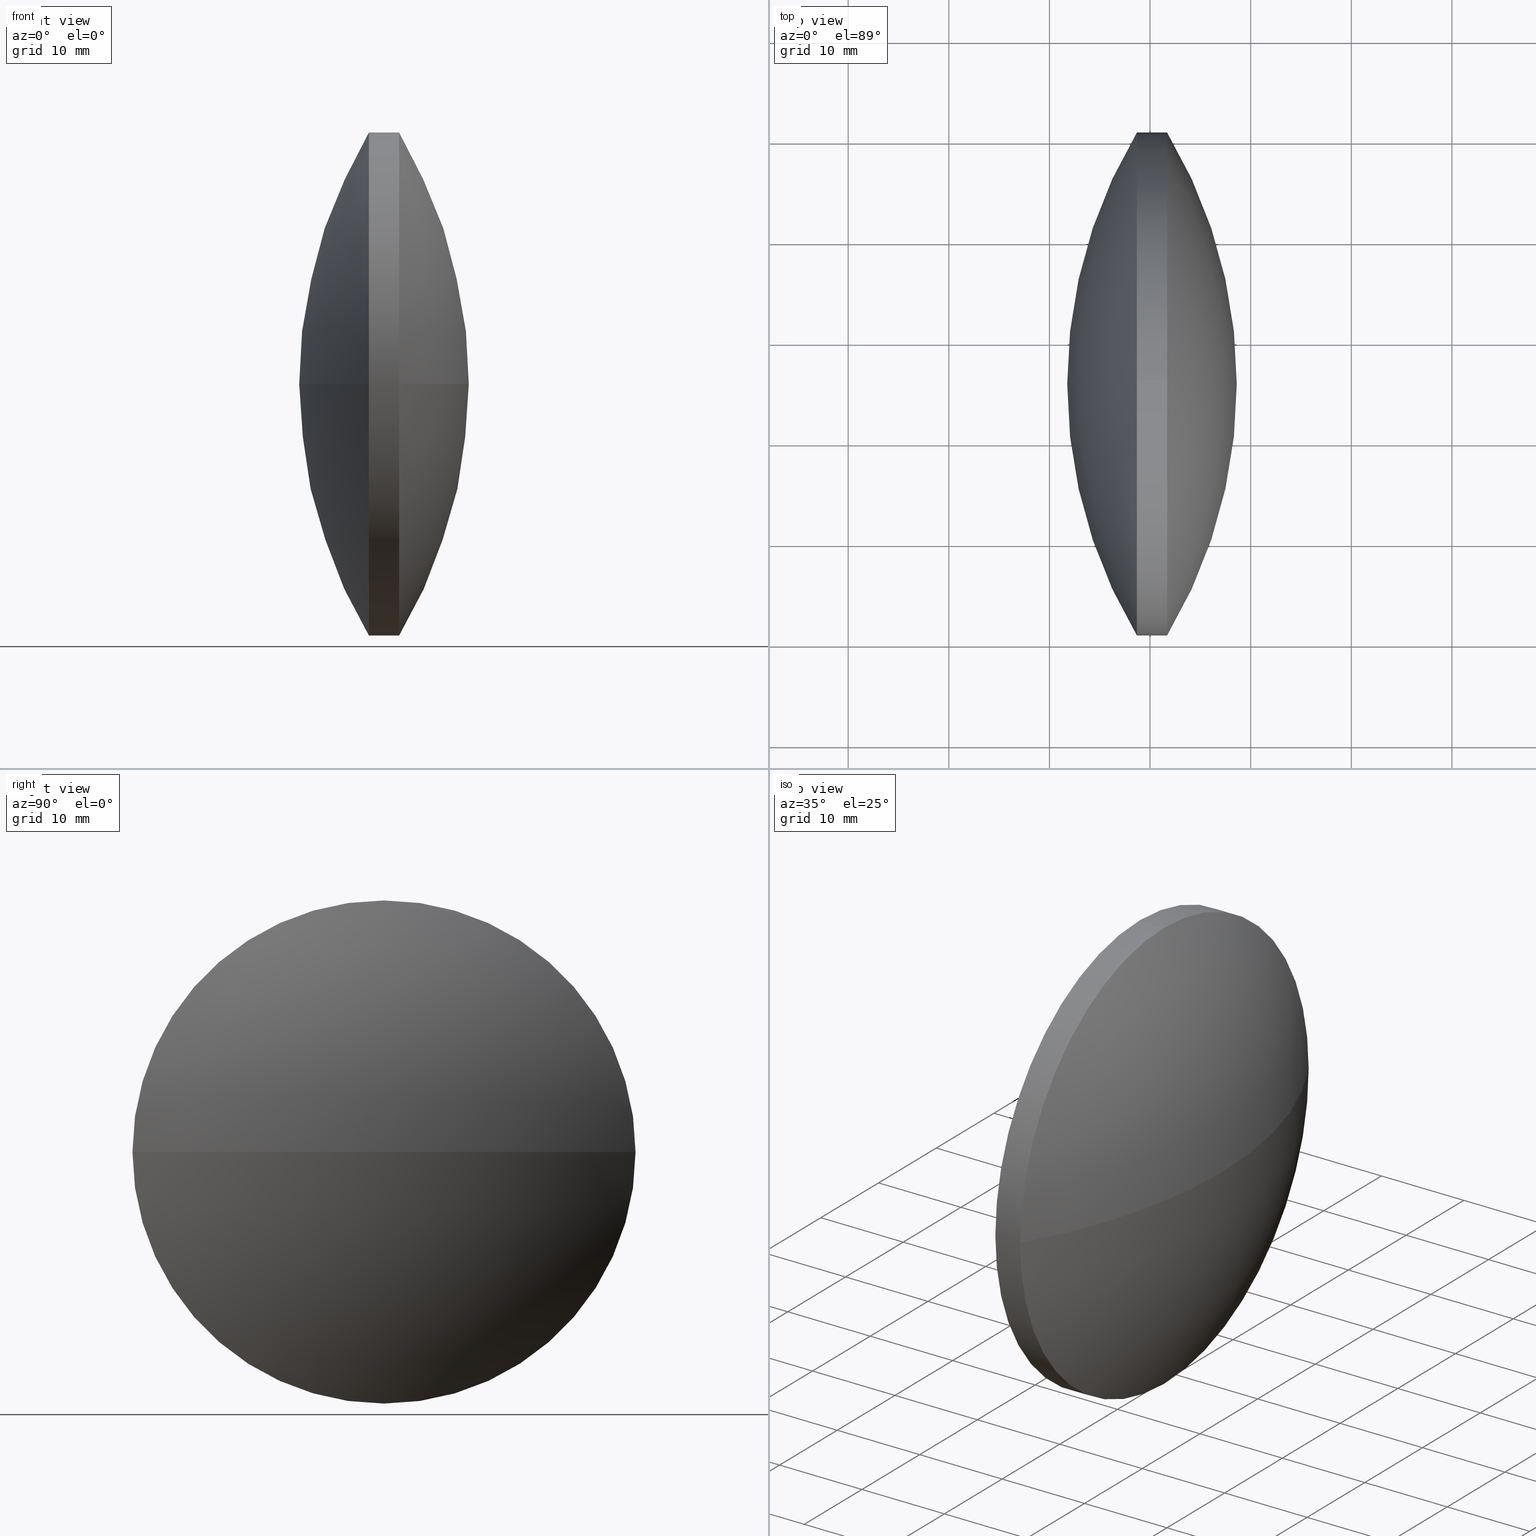
[diagram: canonical four-view strip — front | top / right | iso, engineering-drawing reading convention]
A machine part, canonical four-view strip (front | top / right | iso — engineering-drawing reading convention). The complete STEP part file that produces these views, byte-faithful:
ISO-10303-21;
HEADER;
FILE_DESCRIPTION (( 'STEP AP203' ),
    '1' );
FILE_NAME ('110019.STEP',
    '2019-06-25T06:16:20',
    ( '' ),
    ( '' ),
    'SwSTEP 2.0',
    'SolidWorks 2016',
    '' );
FILE_SCHEMA (( 'CONFIG_CONTROL_DESIGN' ));
ENDSEC;

DATA;
#1 = CC_DESIGN_APPROVAL ( #241, ( #112 ) ) ;
#2 = APPROVAL_PERSON_ORGANIZATION ( #161, #324, #259 ) ;
#3 = APPROVAL_PERSON_ORGANIZATION ( #219, #85, #14 ) ;
#4 = AXIS2_PLACEMENT_3D ( 'NONE', #332, #148, #183 ) ;
#5 = CIRCLE ( 'NONE', #46, 25.00000000000025900 ) ;
#6 = CARTESIAN_POINT ( 'NONE',  ( 130.0294410414005600, 95.70100988816007300, 0.0000000000000000000 ) ) ;
#7 = DIRECTION ( 'NONE',  ( 0.0000000000000000000, 1.000000000000000000, 1.224646799147353500E-016 ) ) ;
#8 = ADVANCED_BREP_SHAPE_REPRESENTATION ( '110019', ( #166, #71 ), #240 ) ;
#9 = CARTESIAN_POINT ( 'NONE',  ( 210.3571486226290100, 95.70100988816005800, 0.0000000000000000000 ) ) ;
#10 = LOCAL_TIME ( 14, 16, 20.00000000000000000, #80 ) ;
#11 = DIRECTION ( 'NONE',  ( 1.000000000000000000, 0.0000000000000000000, 0.0000000000000000000 ) ) ;
#12 = EDGE_LOOP ( 'NONE', ( #230, #175, #67, #258 ) ) ;
#13 = APPLICATION_PROTOCOL_DEFINITION ( 'international standard', 'config_control_design', 1994, #260 ) ;
#14 = APPROVAL_ROLE ( '' ) ;
#15 = DIRECTION ( 'NONE',  ( 0.0000000000000000000, 0.0000000000000000000, 1.000000000000000000 ) ) ;
#16 = DATE_AND_TIME ( #19, #149 ) ;
#17 = CIRCLE ( 'NONE', #220, 25.00000000000025900 ) ;
#18 = CC_DESIGN_DATE_AND_TIME_ASSIGNMENT ( #162, #255, ( #112 ) ) ;
#19 = CALENDAR_DATE ( 2019, 25, 6 ) ;
#20 = CALENDAR_DATE ( 2019, 25, 6 ) ;
#21 = ORIENTED_EDGE ( 'NONE', *, *, #247, .T. ) ;
#22 = EDGE_LOOP ( 'NONE', ( #189, #75, #326, #261 ) ) ;
#23 = CC_DESIGN_APPROVAL ( #44, ( #318 ) ) ;
#24 = LOCAL_TIME ( 14, 16, 20.00000000000000000, #313 ) ;
#25 = CIRCLE ( 'NONE', #137, 25.00000000000025900 ) ;
#26 = AXIS2_PLACEMENT_3D ( 'NONE', #302, #273, #7 ) ;
#27 = ORIENTED_EDGE ( 'NONE', *, *, #253, .T. ) ;
#28 = PRODUCT_RELATED_PRODUCT_CATEGORY ( 'detail', '', ( #198 ) ) ;
#29 = COORDINATED_UNIVERSAL_TIME_OFFSET ( 8, 0, .AHEAD. ) ;
#30 = DIRECTION ( 'NONE',  ( -1.000000000000000000, -0.0000000000000000000, -0.0000000000000000000 ) ) ;
#31 = ORIENTED_EDGE ( 'NONE', *, *, #262, .T. ) ;
#32 = AXIS2_PLACEMENT_3D ( 'NONE', #119, #60, #303 ) ;
#33 = DIRECTION ( 'NONE',  ( -1.000000000000000000, -0.0000000000000000000, -0.0000000000000000000 ) ) ;
#34 = CARTESIAN_POINT ( 'NONE',  ( 0.0000000000000000000, 0.0000000000000000000, 0.0000000000000000000 ) ) ;
#35 = CC_DESIGN_PERSON_AND_ORGANIZATION_ASSIGNMENT ( #55, #96, ( #322 ) ) ;
#36 = CARTESIAN_POINT ( 'NONE',  ( 171.6932948320147700, 95.70100988816007300, 0.0000000000000000000 ) ) ;
#37 = DATE_AND_TIME ( #108, #45 ) ;
#38 = ORIENTED_EDGE ( 'NONE', *, *, #304, .T. ) ;
#39 = CARTESIAN_POINT ( 'NONE',  ( 168.6932948320147400, 95.70100988816007300, 0.0000000000000000000 ) ) ;
#40 = MECHANICAL_CONTEXT ( 'NONE', #333, 'mechanical' ) ;
#41 = AXIS2_PLACEMENT_3D ( 'NONE', #179, #15, #11 ) ;
#42 = CALENDAR_DATE ( 2019, 25, 6 ) ;
#43 = ORIENTED_EDGE ( 'NONE', *, *, #150, .F. ) ;
#44 = APPROVAL ( #184, 'δָ��' ) ;
#45 = LOCAL_TIME ( 14, 16, 20.00000000000000000, #343 ) ;
#46 = AXIS2_PLACEMENT_3D ( 'NONE', #36, #124, #206 ) ;
#47 = CC_DESIGN_PERSON_AND_ORGANIZATION_ASSIGNMENT ( #93, #95, ( #322 ) ) ;
#48 = PERSON_AND_ORGANIZATION ( #267, #203 ) ;
#49 = AXIS2_PLACEMENT_3D ( 'NONE', #39, #228, #114 ) ;
#50 = CALENDAR_DATE ( 2019, 25, 6 ) ;
#51 = FACE_OUTER_BOUND ( 'NONE', #52, .T. ) ;
#52 = EDGE_LOOP ( 'NONE', ( #57, #163, #123, #103, #139, #264 ) ) ;
#53 = CARTESIAN_POINT ( 'NONE',  ( 168.6932948320147400, 95.70100988816007300, 0.0000000000000000000 ) ) ;
#54 = DIRECTION ( 'NONE',  ( -0.0000000000000000000, 0.0000000000000000000, -1.000000000000000000 ) ) ;
#55 = PERSON_AND_ORGANIZATION ( #267, #203 ) ;
#56 = EDGE_CURVE ( 'NONE', #270, #209, #106, .T. ) ;
#57 = ORIENTED_EDGE ( 'NONE', *, *, #78, .T. ) ;
#58 = DIRECTION ( 'NONE',  ( 0.0000000000000000000, 0.0000000000000000000, 1.000000000000000000 ) ) ;
#59 = DIRECTION ( 'NONE',  ( -1.000000000000000000, -0.0000000000000000000, -0.0000000000000000000 ) ) ;
#60 = DIRECTION ( 'NONE',  ( -0.0000000000000000000, 0.0000000000000000000, -1.000000000000000000 ) ) ;
#61 = LOCAL_TIME ( 14, 16, 20.00000000000000000, #29 ) ;
#62 = DIRECTION ( 'NONE',  ( 0.0000000000000000000, 0.0000000000000000000, 1.000000000000000000 ) ) ;
#63 = CIRCLE ( 'NONE', #223, 48.58885379061430900 ) ;
#64 = DIRECTION ( 'NONE',  ( -0.0000000000000000000, 0.0000000000000000000, 1.000000000000000000 ) ) ;
#65 = AXIS2_PLACEMENT_3D ( 'NONE', #171, #54, #274 ) ;
#66 = APPLICATION_PROTOCOL_DEFINITION ( 'international standard', 'config_control_design', 1994, #126 ) ;
#67 = ORIENTED_EDGE ( 'NONE', *, *, #56, .T. ) ;
#68 = PERSON_AND_ORGANIZATION_ROLE ( 'creator' ) ;
#69 = CC_DESIGN_PERSON_AND_ORGANIZATION_ASSIGNMENT ( #278, #312, ( #112 ) ) ;
#70 = SECURITY_CLASSIFICATION_LEVEL ( 'unclassified' ) ;
#71 = AXIS2_PLACEMENT_3D ( 'NONE', #34, #205, #188 ) ;
#72 = DATE_AND_TIME ( #329, #214 ) ;
#73 = SPHERICAL_SURFACE ( 'NONE', #110, 48.58885379061425900 ) ;
#74 = CYLINDRICAL_SURFACE ( 'NONE', #211, 25.00000000000025900 ) ;
#75 = ORIENTED_EDGE ( 'NONE', *, *, #150, .T. ) ;
#76 = AXIS2_PLACEMENT_3D ( 'NONE', #269, #174, #147 ) ;
#77 = VECTOR ( 'NONE', #176, 1000.000000000000000 ) ;
#78 = EDGE_CURVE ( 'NONE', #285, #82, #236, .T. ) ;
#79 = PERSON_AND_ORGANIZATION ( #267, #203 ) ;
#80 = COORDINATED_UNIVERSAL_TIME_OFFSET ( 8, 0, .AHEAD. ) ;
#81 = CARTESIAN_POINT ( 'NONE',  ( 157.9409552123159100, 95.70100988816007300, 0.0000000000000000000 ) ) ;
#82 = VERTEX_POINT ( 'NONE', #298 ) ;
#83 = CARTESIAN_POINT ( 'NONE',  ( 161.7682948320146700, 95.70100988816005800, 0.0000000000000000000 ) ) ;
#84 = PRODUCT ( '110019', '110019', '', ( #40 ) ) ;
#85 = APPROVAL ( #159, 'δָ��' ) ;
#86 = CARTESIAN_POINT ( 'NONE',  ( 171.6932948320147700, 70.70100988815981700, -3.061616997868414600E-015 ) ) ;
#87 = DIRECTION ( 'NONE',  ( -1.000000000000000000, -0.0000000000000000000, -0.0000000000000000000 ) ) ;
#88 = COORDINATED_UNIVERSAL_TIME_OFFSET ( 8, 0, .AHEAD. ) ;
#89 = CIRCLE ( 'NONE', #294, 25.00000000000025900 ) ;
#90 = DIRECTION ( 'NONE',  ( -0.0000000000000000000, 0.0000000000000000000, -1.000000000000000000 ) ) ;
#91 = DIRECTION ( 'NONE',  ( 0.0000000000000000000, 0.0000000000000000000, 1.000000000000000000 ) ) ;
#92 = CARTESIAN_POINT ( 'NONE',  ( 168.6932948320147400, 95.70100988816007300, -25.00000000000025900 ) ) ;
#93 = PERSON_AND_ORGANIZATION ( #267, #203 ) ;
#94 = CYLINDRICAL_SURFACE ( 'NONE', #97, 25.00000000000025900 ) ;
#95 = PERSON_AND_ORGANIZATION_ROLE ( 'design_supplier' ) ;
#96 = PERSON_AND_ORGANIZATION_ROLE ( 'creator' ) ;
#97 = AXIS2_PLACEMENT_3D ( 'NONE', #115, #271, #142 ) ;
#98 = APPROVAL_STATUS ( 'not_yet_approved' ) ;
#99 = ORIENTED_EDGE ( 'NONE', *, *, #262, .F. ) ;
#100 = APPLICATION_CONTEXT ( 'configuration controlled 3d designs of mechanical parts and assemblies' ) ;
#101 = PERSON_AND_ORGANIZATION ( #267, #203 ) ;
#102 = APPROVAL_DATE_TIME ( #37, #241 ) ;
#103 = ORIENTED_EDGE ( 'NONE', *, *, #56, .F. ) ;
#104 = APPROVAL ( #308, 'δָ��' ) ;
#105 = COORDINATED_UNIVERSAL_TIME_OFFSET ( 8, 0, .AHEAD. ) ;
#106 = CIRCLE ( 'NONE', #340, 25.00000000000025900 ) ;
#107 = CALENDAR_DATE ( 2019, 25, 6 ) ;
#108 = CALENDAR_DATE ( 2019, 25, 6 ) ;
#109 = VERTEX_POINT ( 'NONE', #83 ) ;
#110 = AXIS2_PLACEMENT_3D ( 'NONE', #6, #90, #250 ) ;
#111 = PRODUCT_DEFINITION_SHAPE ( 'NONE', 'NONE',  #112 ) ;
#112 = PRODUCT_DEFINITION ( 'δ֪', '', #322, #164 ) ;
#113 = EDGE_LOOP ( 'NONE', ( #336, #21, #38, #249 ) ) ;
#114 = DIRECTION ( 'NONE',  ( 0.0000000000000000000, 0.0000000000000000000, 1.000000000000000000 ) ) ;
#115 = CARTESIAN_POINT ( 'NONE',  ( 157.9409552123159100, 95.70100988816007300, 0.0000000000000000000 ) ) ;
#116 = DIRECTION ( 'NONE',  ( 0.0000000000000000000, 0.0000000000000000000, 1.000000000000000000 ) ) ;
#117 = CC_DESIGN_DATE_AND_TIME_ASSIGNMENT ( #72, #212, ( #289 ) ) ;
#118 = CARTESIAN_POINT ( 'NONE',  ( 168.6932948320147400, 95.70100988816007300, 25.00000000000025900 ) ) ;
#119 = CARTESIAN_POINT ( 'NONE',  ( 210.3571486226290100, 95.70100988816005800, 0.0000000000000000000 ) ) ;
#120 = CARTESIAN_POINT ( 'NONE',  ( 168.6932948320147400, 95.70100988816007300, 0.0000000000000000000 ) ) ;
#121 = PERSON_AND_ORGANIZATION ( #267, #203 ) ;
#122 = PERSON_AND_ORGANIZATION ( #267, #203 ) ;
#123 = ORIENTED_EDGE ( 'NONE', *, *, #237, .F. ) ;
#124 = DIRECTION ( 'NONE',  ( -1.000000000000000000, -0.0000000000000000000, -0.0000000000000000000 ) ) ;
#125 = APPROVAL_ROLE ( '' ) ;
#126 = APPLICATION_CONTEXT ( 'configuration controlled 3d designs of mechanical parts and assemblies' ) ;
#127 = CIRCLE ( 'NONE', #26, 48.58885379061432300 ) ;
#128 = SECURITY_CLASSIFICATION_LEVEL ( 'unclassified' ) ;
#129 = EDGE_LOOP ( 'NONE', ( #254, #293, #31, #190, #135, #344 ) ) ;
#130 = CC_DESIGN_PERSON_AND_ORGANIZATION_ASSIGNMENT ( #48, #334, ( #289 ) ) ;
#131 =( LENGTH_UNIT ( ) NAMED_UNIT ( * ) SI_UNIT ( .MILLI., .METRE. ) );
#132 = APPROVAL_ROLE ( '' ) ;
#133 = CALENDAR_DATE ( 2019, 25, 6 ) ;
#134 = CIRCLE ( 'NONE', #4, 48.58885379061425900 ) ;
#135 = ORIENTED_EDGE ( 'NONE', *, *, #287, .F. ) ;
#136 = CC_DESIGN_APPROVAL ( #104, ( #289 ) ) ;
#137 = AXIS2_PLACEMENT_3D ( 'NONE', #226, #87, #91 ) ;
#138 = APPROVAL_DATE_TIME ( #208, #85 ) ;
#139 = ORIENTED_EDGE ( 'NONE', *, *, #327, .F. ) ;
#140 = APPROVAL_PERSON_ORGANIZATION ( #238, #104, #156 ) ;
#141 = FACE_OUTER_BOUND ( 'NONE', #12, .T. ) ;
#142 = DIRECTION ( 'NONE',  ( 0.0000000000000000000, 0.0000000000000000000, 1.000000000000000000 ) ) ;
#143 = CIRCLE ( 'NONE', #197, 25.00000000000025900 ) ;
#144 = CLOSED_SHELL ( 'NONE', ( #204, #152, #276, #221, #227, #178 ) ) ;
#145 = CARTESIAN_POINT ( 'NONE',  ( 130.0294410414005600, 95.70100988816007300, 0.0000000000000000000 ) ) ;
#146 = APPROVAL ( #153, 'δָ��' ) ;
#147 = DIRECTION ( 'NONE',  ( 0.0000000000000000000, 1.000000000000000000, 1.224646799147353200E-016 ) ) ;
#148 = DIRECTION ( 'NONE',  ( -0.0000000000000000000, 0.0000000000000000000, 1.000000000000000000 ) ) ;
#149 = LOCAL_TIME ( 14, 16, 20.00000000000000000, #88 ) ;
#150 = EDGE_CURVE ( 'NONE', #281, #331, #299, .T. ) ;
#151 = CC_DESIGN_PERSON_AND_ORGANIZATION_ASSIGNMENT ( #79, #68, ( #318 ) ) ;
#152 = ADVANCED_FACE ( 'NONE', ( #187 ), #314, .T. ) ;
#153 = APPROVAL_STATUS ( 'not_yet_approved' ) ;
#154 = EDGE_CURVE ( 'NONE', #317, #285, #143, .T. ) ;
#155 = FACE_OUTER_BOUND ( 'NONE', #307, .T. ) ;
#156 = APPROVAL_ROLE ( '' ) ;
#157 =( NAMED_UNIT ( * ) PLANE_ANGLE_UNIT ( ) SI_UNIT ( $, .RADIAN. ) );
#158 = PERSON_AND_ORGANIZATION ( #267, #203 ) ;
#159 = APPROVAL_STATUS ( 'not_yet_approved' ) ;
#160 = CC_DESIGN_PERSON_AND_ORGANIZATION_ASSIGNMENT ( #181, #210, ( #177 ) ) ;
#161 = PERSON_AND_ORGANIZATION ( #267, #203 ) ;
#162 = DATE_AND_TIME ( #20, #239 ) ;
#163 = ORIENTED_EDGE ( 'NONE', *, *, #280, .T. ) ;
#164 = DESIGN_CONTEXT ( 'detailed design', #100, 'design' ) ;
#165 = APPROVAL_DATE_TIME ( #16, #146 ) ;
#166 = MANIFOLD_SOLID_BREP ( '��ת1', #144 ) ;
#167 = CC_DESIGN_PERSON_AND_ORGANIZATION_ASSIGNMENT ( #101, #282, ( #318 ) ) ;
#168 = LOCAL_TIME ( 14, 16, 20.00000000000000000, #251 ) ;
#169 = SHAPE_DEFINITION_REPRESENTATION ( #195, #8 ) ;
#170 = AXIS2_PLACEMENT_3D ( 'NONE', #222, #245, #295 ) ;
#171 = CARTESIAN_POINT ( 'NONE',  ( 210.3571486226290100, 95.70100988816005800, 0.0000000000000000000 ) ) ;
#172 = DIRECTION ( 'NONE',  ( -0.0000000000000000000, 0.0000000000000000000, -1.000000000000000000 ) ) ;
#173 = AXIS2_PLACEMENT_3D ( 'NONE', #145, #172, #200 ) ;
#174 = DIRECTION ( 'NONE',  ( 0.0000000000000000000, 1.224646799147353200E-016, -1.000000000000000000 ) ) ;
#175 = ORIENTED_EDGE ( 'NONE', *, *, #287, .T. ) ;
#176 = DIRECTION ( 'NONE',  ( -1.000000000000000000, -0.0000000000000000000, -0.0000000000000000000 ) ) ;
#177 = SECURITY_CLASSIFICATION ( '', '', #70 ) ;
#178 = ADVANCED_FACE ( 'NONE', ( #199 ), #94, .T. ) ;
#179 = CARTESIAN_POINT ( 'NONE',  ( 0.0000000000000000000, 0.0000000000000000000, 0.0000000000000000000 ) ) ;
#180 = CARTESIAN_POINT ( 'NONE',  ( 178.6182948320148400, 95.70100988816007300, 0.0000000000000000000 ) ) ;
#181 = PERSON_AND_ORGANIZATION ( #267, #203 ) ;
#182 = LINE ( 'NONE', #330, #77 ) ;
#183 = DIRECTION ( 'NONE',  ( 1.000000000000000000, 0.0000000000000000000, 0.0000000000000000000 ) ) ;
#184 = APPROVAL_STATUS ( 'not_yet_approved' ) ;
#185 = MECHANICAL_CONTEXT ( 'NONE', #260, 'mechanical' ) ;
#186 = CC_DESIGN_SECURITY_CLASSIFICATION ( #337, ( #318 ) ) ;
#187 = FACE_OUTER_BOUND ( 'NONE', #22, .T. ) ;
#188 = DIRECTION ( 'NONE',  ( 1.000000000000000000, 0.0000000000000000000, 0.0000000000000000000 ) ) ;
#189 = ORIENTED_EDGE ( 'NONE', *, *, #253, .F. ) ;
#190 = ORIENTED_EDGE ( 'NONE', *, *, #327, .T. ) ;
#191 = PRODUCT_RELATED_PRODUCT_CATEGORY ( 'detail', '', ( #84 ) ) ;
#192 = CALENDAR_DATE ( 2019, 25, 6 ) ;
#193 = PERSON_AND_ORGANIZATION ( #267, #203 ) ;
#194 = VERTEX_POINT ( 'NONE', #323 ) ;
#195 = PRODUCT_DEFINITION_SHAPE ( 'NONE', 'NONE',  #289 ) ;
#196 = DIRECTION ( 'NONE',  ( 0.0000000000000000000, 0.0000000000000000000, 1.000000000000000000 ) ) ;
#197 = AXIS2_PLACEMENT_3D ( 'NONE', #328, #321, #196 ) ;
#198 = PRODUCT ( '110019', '110019', '', ( #185 ) ) ;
#199 = FACE_OUTER_BOUND ( 'NONE', #129, .T. ) ;
#200 = DIRECTION ( 'NONE',  ( 0.0000000000000000000, 1.000000000000000000, 0.0000000000000000000 ) ) ;
#201 = CARTESIAN_POINT ( 'NONE',  ( 171.6932948320147700, 95.70100988816007300, 25.00000000000025900 ) ) ;
#202 = CARTESIAN_POINT ( 'NONE',  ( 168.6932948320147400, 95.70100988816007300, 0.0000000000000000000 ) ) ;
#203 = ORGANIZATION ( 'δָ��', 'δָ��', '' ) ;
#204 = ADVANCED_FACE ( 'NONE', ( #51 ), #74, .T. ) ;
#205 = DIRECTION ( 'NONE',  ( 0.0000000000000000000, 0.0000000000000000000, 1.000000000000000000 ) ) ;
#206 = DIRECTION ( 'NONE',  ( 0.0000000000000000000, 0.0000000000000000000, 1.000000000000000000 ) ) ;
#207 = CC_DESIGN_PERSON_AND_ORGANIZATION_ASSIGNMENT ( #215, #231, ( #84 ) ) ;
#208 = DATE_AND_TIME ( #268, #10 ) ;
#209 = VERTEX_POINT ( 'NONE', #218 ) ;
#210 = PERSON_AND_ORGANIZATION_ROLE ( 'classification_officer' ) ;
#211 = AXIS2_PLACEMENT_3D ( 'NONE', #81, #30, #290 ) ;
#212 = DATE_TIME_ROLE ( 'creation_date' ) ;
#213 =( NAMED_UNIT ( * ) SI_UNIT ( $, .STERADIAN. ) SOLID_ANGLE_UNIT ( ) );
#214 = LOCAL_TIME ( 14, 16, 20.00000000000000000, #105 ) ;
#215 = PERSON_AND_ORGANIZATION ( #267, #203 ) ;
#216 = SPHERICAL_SURFACE ( 'NONE', #65, 48.58885379061433000 ) ;
#217 = CC_DESIGN_PERSON_AND_ORGANIZATION_ASSIGNMENT ( #193, #256, ( #198 ) ) ;
#218 = CARTESIAN_POINT ( 'NONE',  ( 168.6932948320147400, 120.7010098881603300, 0.0000000000000000000 ) ) ;
#219 = PERSON_AND_ORGANIZATION ( #267, #203 ) ;
#220 = AXIS2_PLACEMENT_3D ( 'NONE', #120, #59, #116 ) ;
#221 = ADVANCED_FACE ( 'NONE', ( #141 ), #216, .T. ) ;
#222 = CARTESIAN_POINT ( 'NONE',  ( 171.6932948320147700, 95.70100988816007300, 0.0000000000000000000 ) ) ;
#223 = AXIS2_PLACEMENT_3D ( 'NONE', #9, #64, #272 ) ;
#224 = DIRECTION ( 'NONE',  ( -1.000000000000000000, -0.0000000000000000000, -0.0000000000000000000 ) ) ;
#225 = COORDINATED_UNIVERSAL_TIME_OFFSET ( 8, 0, .AHEAD. ) ;
#226 = CARTESIAN_POINT ( 'NONE',  ( 171.6932948320147700, 95.70100988816007300, 0.0000000000000000000 ) ) ;
#227 = ADVANCED_FACE ( 'NONE', ( #155 ), #73, .T. ) ;
#228 = DIRECTION ( 'NONE',  ( -1.000000000000000000, -0.0000000000000000000, -0.0000000000000000000 ) ) ;
#229 = APPROVAL_PERSON_ORGANIZATION ( #121, #44, #235 ) ;
#230 = ORIENTED_EDGE ( 'NONE', *, *, #304, .F. ) ;
#231 = PERSON_AND_ORGANIZATION_ROLE ( 'design_owner' ) ;
#232 = APPLICATION_PROTOCOL_DEFINITION ( 'international standard', 'config_control_design', 1994, #333 ) ;
#233 = DATE_TIME_ROLE ( 'classification_date' ) ;
#234 = PERSON_AND_ORGANIZATION ( #267, #203 ) ;
#235 = APPROVAL_ROLE ( '' ) ;
#236 = CIRCLE ( 'NONE', #170, 25.00000000000025900 ) ;
#237 = EDGE_CURVE ( 'NONE', #209, #246, #89, .T. ) ;
#238 = PERSON_AND_ORGANIZATION ( #267, #203 ) ;
#239 = LOCAL_TIME ( 14, 16, 20.00000000000000000, #244 ) ;
#240 =( GEOMETRIC_REPRESENTATION_CONTEXT ( 3 ) GLOBAL_UNCERTAINTY_ASSIGNED_CONTEXT ( ( #286 ) ) GLOBAL_UNIT_ASSIGNED_CONTEXT ( ( #131, #157, #213 ) ) REPRESENTATION_CONTEXT ( 'NONE', 'WORKASPACE' ) );
#241 = APPROVAL ( #279, 'δָ��' ) ;
#242 = CC_DESIGN_SECURITY_CLASSIFICATION ( #177, ( #322 ) ) ;
#243 = APPROVAL_DATE_TIME ( #288, #104 ) ;
#244 = COORDINATED_UNIVERSAL_TIME_OFFSET ( 8, 0, .AHEAD. ) ;
#245 = DIRECTION ( 'NONE',  ( -1.000000000000000000, -0.0000000000000000000, -0.0000000000000000000 ) ) ;
#246 = VERTEX_POINT ( 'NONE', #92 ) ;
#247 = EDGE_CURVE ( 'NONE', #246, #194, #17, .T. ) ;
#248 = DATE_AND_TIME ( #192, #266 ) ;
#249 = ORIENTED_EDGE ( 'NONE', *, *, #320, .F. ) ;
#250 = DIRECTION ( 'NONE',  ( 0.0000000000000000000, 1.000000000000000000, 0.0000000000000000000 ) ) ;
#251 = COORDINATED_UNIVERSAL_TIME_OFFSET ( 8, 0, .AHEAD. ) ;
#252 = VECTOR ( 'NONE', #296, 1000.000000000000000 ) ;
#253 = EDGE_CURVE ( 'NONE', #281, #285, #134, .T. ) ;
#254 = ORIENTED_EDGE ( 'NONE', *, *, #280, .F. ) ;
#255 = DATE_TIME_ROLE ( 'creation_date' ) ;
#256 = PERSON_AND_ORGANIZATION_ROLE ( 'design_owner' ) ;
#257 = APPROVAL_DATE_TIME ( #311, #324 ) ;
#258 = ORIENTED_EDGE ( 'NONE', *, *, #320, .T. ) ;
#259 = APPROVAL_ROLE ( '' ) ;
#260 = APPLICATION_CONTEXT ( 'configuration controlled 3d designs of mechanical parts and assemblies' ) ;
#261 = ORIENTED_EDGE ( 'NONE', *, *, #78, .F. ) ;
#262 = EDGE_CURVE ( 'NONE', #331, #317, #25, .T. ) ;
#263 = CIRCLE ( 'NONE', #49, 25.00000000000025900 ) ;
#264 = ORIENTED_EDGE ( 'NONE', *, *, #154, .T. ) ;
#265 = CC_DESIGN_APPROVAL ( #85, ( #322 ) ) ;
#266 = LOCAL_TIME ( 14, 16, 20.00000000000000000, #225 ) ;
#267 = PERSON ( 'δָ��', 'δָ��', 'δָ��', ('δָ��'), ('δָ��'), ('δָ��') ) ;
#268 = CALENDAR_DATE ( 2019, 25, 6 ) ;
#269 = CARTESIAN_POINT ( 'NONE',  ( 130.0294410414005600, 95.70100988816007300, 0.0000000000000000000 ) ) ;
#270 = VERTEX_POINT ( 'NONE', #118 ) ;
#271 = DIRECTION ( 'NONE',  ( -1.000000000000000000, -0.0000000000000000000, -0.0000000000000000000 ) ) ;
#272 = DIRECTION ( 'NONE',  ( 1.000000000000000000, 0.0000000000000000000, 0.0000000000000000000 ) ) ;
#273 = DIRECTION ( 'NONE',  ( 0.0000000000000000000, 1.224646799147353200E-016, -1.000000000000000000 ) ) ;
#274 = DIRECTION ( 'NONE',  ( 0.0000000000000000000, 1.000000000000000000, 0.0000000000000000000 ) ) ;
#275 = LOCAL_TIME ( 14, 16, 20.00000000000000000, #319 ) ;
#276 = ADVANCED_FACE ( 'NONE', ( #284 ), #306, .T. ) ;
#277 = DATE_TIME_ROLE ( 'classification_date' ) ;
#278 = PERSON_AND_ORGANIZATION ( #267, #203 ) ;
#279 = APPROVAL_STATUS ( 'not_yet_approved' ) ;
#280 = EDGE_CURVE ( 'NONE', #82, #246, #182, .T. ) ;
#281 = VERTEX_POINT ( 'NONE', #180 ) ;
#282 = PERSON_AND_ORGANIZATION_ROLE ( 'design_supplier' ) ;
#283 = CC_DESIGN_APPROVAL ( #146, ( #177 ) ) ;
#284 = FACE_OUTER_BOUND ( 'NONE', #113, .T. ) ;
#285 = VERTEX_POINT ( 'NONE', #301 ) ;
#286 = UNCERTAINTY_MEASURE_WITH_UNIT (LENGTH_MEASURE( 1.000000000000000100E-005 ), #131, 'distance_accuracy_value', 'NONE');
#287 = EDGE_CURVE ( 'NONE', #194, #270, #263, .T. ) ;
#288 = DATE_AND_TIME ( #42, #275 ) ;
#289 = PRODUCT_DEFINITION ( 'δ֪', '', #318, #341 ) ;
#290 = DIRECTION ( 'NONE',  ( 0.0000000000000000000, 0.0000000000000000000, 1.000000000000000000 ) ) ;
#291 = APPROVAL_PERSON_ORGANIZATION ( #234, #146, #125 ) ;
#292 = APPROVAL_PERSON_ORGANIZATION ( #122, #241, #132 ) ;
#293 = ORIENTED_EDGE ( 'NONE', *, *, #335, .T. ) ;
#294 = AXIS2_PLACEMENT_3D ( 'NONE', #202, #33, #62 ) ;
#295 = DIRECTION ( 'NONE',  ( 0.0000000000000000000, 0.0000000000000000000, 1.000000000000000000 ) ) ;
#296 = DIRECTION ( 'NONE',  ( -1.000000000000000000, -0.0000000000000000000, -0.0000000000000000000 ) ) ;
#297 = CC_DESIGN_DATE_AND_TIME_ASSIGNMENT ( #325, #233, ( #337 ) ) ;
#298 = CARTESIAN_POINT ( 'NONE',  ( 171.6932948320147700, 95.70100988816007300, -25.00000000000025900 ) ) ;
#299 = CIRCLE ( 'NONE', #76, 48.58885379061425900 ) ;
#300 = CARTESIAN_POINT ( 'NONE',  ( 157.9409552123159100, 95.70100988816007300, 25.00000000000025900 ) ) ;
#301 = CARTESIAN_POINT ( 'NONE',  ( 171.6932948320147700, 120.7010098881603300, 0.0000000000000000000 ) ) ;
#302 = CARTESIAN_POINT ( 'NONE',  ( 210.3571486226290100, 95.70100988816005800, 0.0000000000000000000 ) ) ;
#303 = DIRECTION ( 'NONE',  ( 0.0000000000000000000, 1.000000000000000000, 0.0000000000000000000 ) ) ;
#304 = EDGE_CURVE ( 'NONE', #194, #109, #127, .T. ) ;
#305 = DATE_AND_TIME ( #133, #24 ) ;
#306 = SPHERICAL_SURFACE ( 'NONE', #32, 48.58885379061433000 ) ;
#307 = EDGE_LOOP ( 'NONE', ( #43, #27, #315, #99 ) ) ;
#308 = APPROVAL_STATUS ( 'not_yet_approved' ) ;
#309 = CC_DESIGN_PERSON_AND_ORGANIZATION_ASSIGNMENT ( #158, #310, ( #337 ) ) ;
#310 = PERSON_AND_ORGANIZATION_ROLE ( 'classification_officer' ) ;
#311 = DATE_AND_TIME ( #50, #168 ) ;
#312 = PERSON_AND_ORGANIZATION_ROLE ( 'creator' ) ;
#313 = COORDINATED_UNIVERSAL_TIME_OFFSET ( 8, 0, .AHEAD. ) ;
#314 = SPHERICAL_SURFACE ( 'NONE', #173, 48.58885379061425900 ) ;
#315 = ORIENTED_EDGE ( 'NONE', *, *, #154, .F. ) ;
#316 = APPROVAL_DATE_TIME ( #248, #44 ) ;
#317 = VERTEX_POINT ( 'NONE', #201 ) ;
#318 = PRODUCT_DEFINITION_FORMATION_WITH_SPECIFIED_SOURCE ( '�κ�', '', #84, .NOT_KNOWN. ) ;
#319 = COORDINATED_UNIVERSAL_TIME_OFFSET ( 8, 0, .AHEAD. ) ;
#320 = EDGE_CURVE ( 'NONE', #209, #109, #63, .T. ) ;
#321 = DIRECTION ( 'NONE',  ( -1.000000000000000000, -0.0000000000000000000, -0.0000000000000000000 ) ) ;
#322 = PRODUCT_DEFINITION_FORMATION_WITH_SPECIFIED_SOURCE ( '�κ�', '', #198, .NOT_KNOWN. ) ;
#323 = CARTESIAN_POINT ( 'NONE',  ( 168.6932948320147400, 70.70100988815980300, -3.061616997868414600E-015 ) ) ;
#324 = APPROVAL ( #98, 'δָ��' ) ;
#325 = DATE_AND_TIME ( #107, #61 ) ;
#326 = ORIENTED_EDGE ( 'NONE', *, *, #335, .F. ) ;
#327 = EDGE_CURVE ( 'NONE', #317, #270, #339, .T. ) ;
#328 = CARTESIAN_POINT ( 'NONE',  ( 171.6932948320147700, 95.70100988816007300, 0.0000000000000000000 ) ) ;
#329 = CALENDAR_DATE ( 2019, 25, 6 ) ;
#330 = CARTESIAN_POINT ( 'NONE',  ( 157.9409552123159100, 95.70100988816007300, -25.00000000000025900 ) ) ;
#331 = VERTEX_POINT ( 'NONE', #86 ) ;
#332 = CARTESIAN_POINT ( 'NONE',  ( 130.0294410414005600, 95.70100988816007300, 0.0000000000000000000 ) ) ;
#333 = APPLICATION_CONTEXT ( 'configuration controlled 3d designs of mechanical parts and assemblies' ) ;
#334 = PERSON_AND_ORGANIZATION_ROLE ( 'creator' ) ;
#335 = EDGE_CURVE ( 'NONE', #82, #331, #5, .T. ) ;
#336 = ORIENTED_EDGE ( 'NONE', *, *, #237, .T. ) ;
#337 = SECURITY_CLASSIFICATION ( '', '', #128 ) ;
#338 = APPLICATION_PROTOCOL_DEFINITION ( 'international standard', 'config_control_design', 1994, #100 ) ;
#339 = LINE ( 'NONE', #300, #252 ) ;
#340 = AXIS2_PLACEMENT_3D ( 'NONE', #53, #224, #58 ) ;
#341 = DESIGN_CONTEXT ( 'detailed design', #126, 'design' ) ;
#342 = CC_DESIGN_APPROVAL ( #324, ( #337 ) ) ;
#343 = COORDINATED_UNIVERSAL_TIME_OFFSET ( 8, 0, .AHEAD. ) ;
#344 = ORIENTED_EDGE ( 'NONE', *, *, #247, .F. ) ;
#345 = CC_DESIGN_DATE_AND_TIME_ASSIGNMENT ( #305, #277, ( #177 ) ) ;
ENDSEC;
END-ISO-10303-21;
